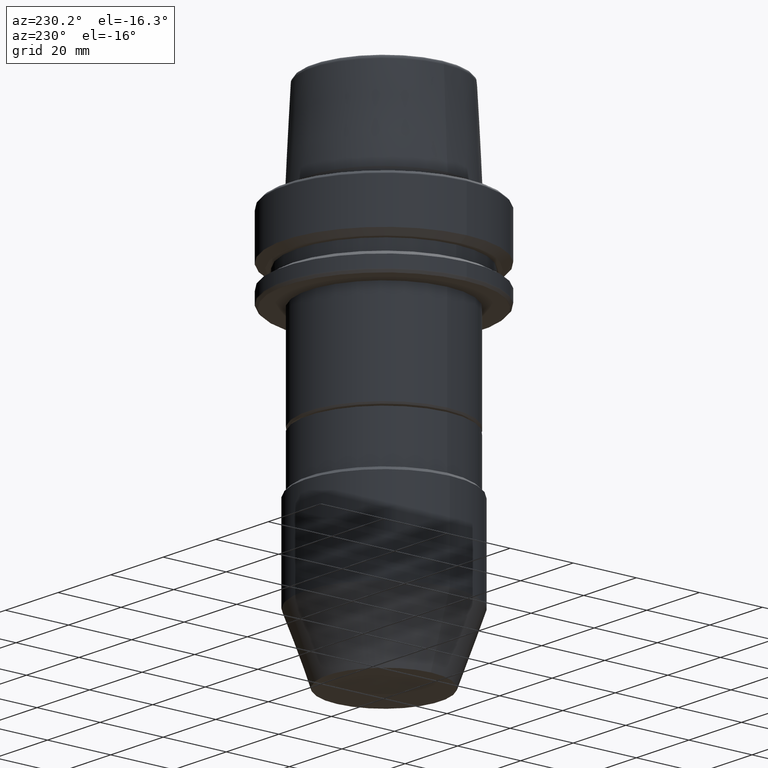
[diagram: clean part render]
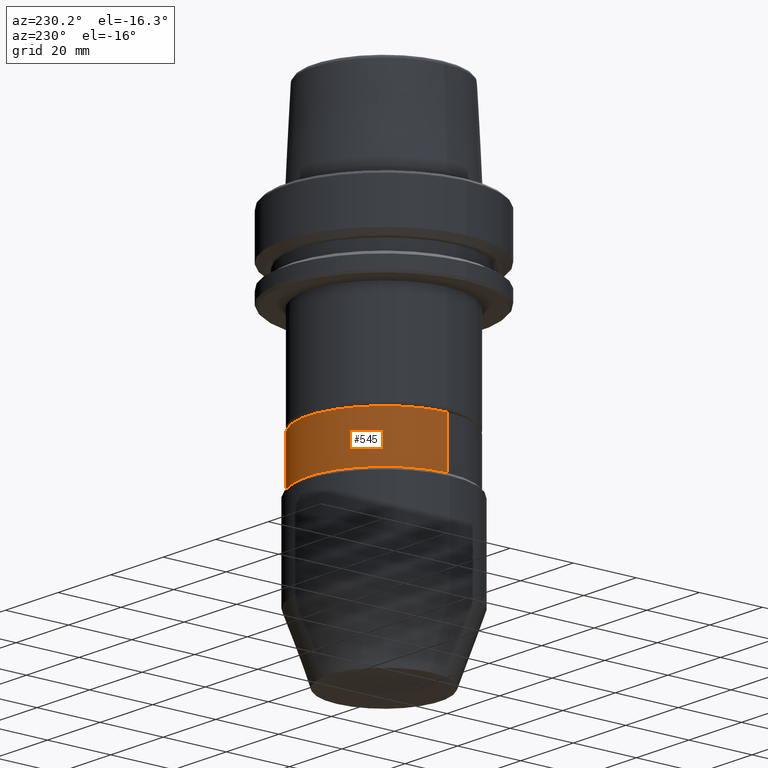
[diagram: same view with one face highlighted and labeled with its STEP entity id]
A machine part, auxiliary view. The second image highlights one B-rep face of the part: STEP entity #545.
In plain terms, the highlighted cylindrical surface (partial cylindrical patch) has radius 24 mm, axis along (-0, -0, 1).
Its self-contained STEP definition (entity closure, byte-faithful):
#61 = AXIS2_PLACEMENT_3D ( 'NONE', #157, #966, #271 ) ;
#65 = CARTESIAN_POINT ( 'NONE',  ( -24.00000000000000000, 2.939152317953648300E-015, -57.79999999999999000 ) ) ;
#157 = CARTESIAN_POINT ( 'NONE',  ( 0.0000000000000000000, 0.0000000000000000000, -57.79999999999999000 ) ) ;
#247 = ORIENTED_EDGE ( 'NONE', *, *, #1219, .T. ) ;
#271 = DIRECTION ( 'NONE',  ( 1.000000000000000000, 0.0000000000000000000, 0.0000000000000000000 ) ) ;
#284 = FACE_OUTER_BOUND ( 'NONE', #1045, .T. ) ;
#398 = CARTESIAN_POINT ( 'NONE',  ( -24.00000000000000400, 2.939152317953648300E-015, 31.31059451800105700 ) ) ;
#410 = VERTEX_POINT ( 'NONE', #824 ) ;
#420 = ORIENTED_EDGE ( 'NONE', *, *, #1369, .F. ) ;
#429 = VERTEX_POINT ( 'NONE', #866 ) ;
#489 = CARTESIAN_POINT ( 'NONE',  ( -24.00000000000000700, 0.0000000000000000000, -73.20000000000000300 ) ) ;
#545 = ADVANCED_FACE ( 'NONE', ( #284 ), #1355, .T. ) ;
#623 = DIRECTION ( 'NONE',  ( -0.0000000000000000000, -0.0000000000000000000, 1.000000000000000000 ) ) ;
#671 = CIRCLE ( 'NONE', #61, 24.00000000000000000 ) ;
#709 = DIRECTION ( 'NONE',  ( -0.0000000000000000000, -0.0000000000000000000, 1.000000000000000000 ) ) ;
#767 = ORIENTED_EDGE ( 'NONE', *, *, #1359, .T. ) ;
#786 = VECTOR ( 'NONE', #829, 1000.000000000000000 ) ;
#805 = VERTEX_POINT ( 'NONE', #65 ) ;
#809 = DIRECTION ( 'NONE',  ( 1.000000000000000000, 0.0000000000000000000, 0.0000000000000000000 ) ) ;
#824 = CARTESIAN_POINT ( 'NONE',  ( 24.00000000000000000, 0.0000000000000000000, -57.79999999999999000 ) ) ;
#829 = DIRECTION ( 'NONE',  ( -0.0000000000000000000, -0.0000000000000000000, 1.000000000000000000 ) ) ;
#866 = CARTESIAN_POINT ( 'NONE',  ( 24.00000000000000700, 3.000384657911015500E-015, -73.20000000000000300 ) ) ;
#936 = LINE ( 'NONE', #398, #1389 ) ;
#951 = CARTESIAN_POINT ( 'NONE',  ( 24.00000000000000400, 0.0000000000000000000, 31.31059451800105700 ) ) ;
#966 = DIRECTION ( 'NONE',  ( -0.0000000000000000000, -0.0000000000000000000, 1.000000000000000000 ) ) ;
#1035 = AXIS2_PLACEMENT_3D ( 'NONE', #1306, #623, #1431 ) ;
#1045 = EDGE_LOOP ( 'NONE', ( #767, #247, #420, #1305 ) ) ;
#1145 = VERTEX_POINT ( 'NONE', #489 ) ;
#1194 = CIRCLE ( 'NONE', #1035, 24.00000000000000700 ) ;
#1204 = DIRECTION ( 'NONE',  ( -0.0000000000000000000, -0.0000000000000000000, 1.000000000000000000 ) ) ;
#1219 = EDGE_CURVE ( 'NONE', #1145, #805, #936, .T. ) ;
#1254 = AXIS2_PLACEMENT_3D ( 'NONE', #1275, #709, #809 ) ;
#1266 = LINE ( 'NONE', #951, #786 ) ;
#1275 = CARTESIAN_POINT ( 'NONE',  ( 0.0000000000000000000, 0.0000000000000000000, 31.31059451800105700 ) ) ;
#1296 = EDGE_CURVE ( 'NONE', #429, #410, #1266, .T. ) ;
#1305 = ORIENTED_EDGE ( 'NONE', *, *, #1296, .F. ) ;
#1306 = CARTESIAN_POINT ( 'NONE',  ( 0.0000000000000000000, 0.0000000000000000000, -73.20000000000000300 ) ) ;
#1355 = CYLINDRICAL_SURFACE ( 'NONE', #1254, 24.00000000000000400 ) ;
#1359 = EDGE_CURVE ( 'NONE', #429, #1145, #1194, .T. ) ;
#1369 = EDGE_CURVE ( 'NONE', #410, #805, #671, .T. ) ;
#1389 = VECTOR ( 'NONE', #1204, 1000.000000000000000 ) ;
#1431 = DIRECTION ( 'NONE',  ( 1.000000000000000000, 0.0000000000000000000, 0.0000000000000000000 ) ) ;